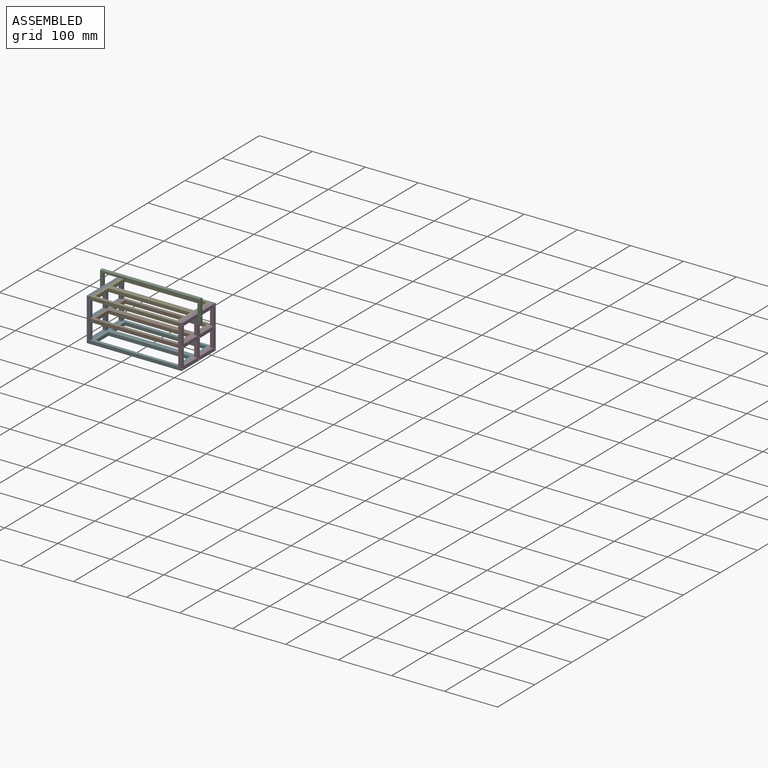
[diagram: assembled view]
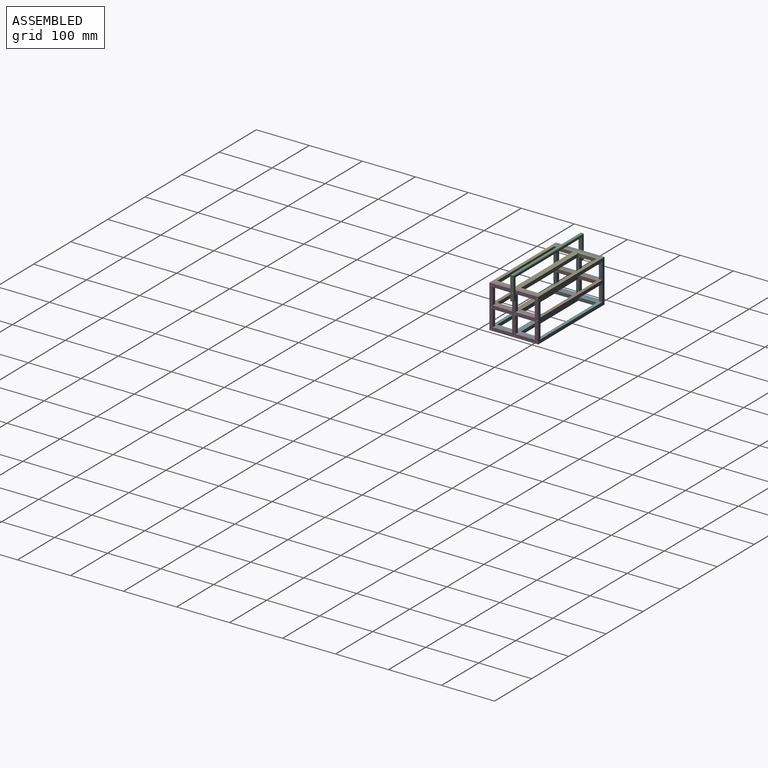
[diagram: assembled view, second angle]
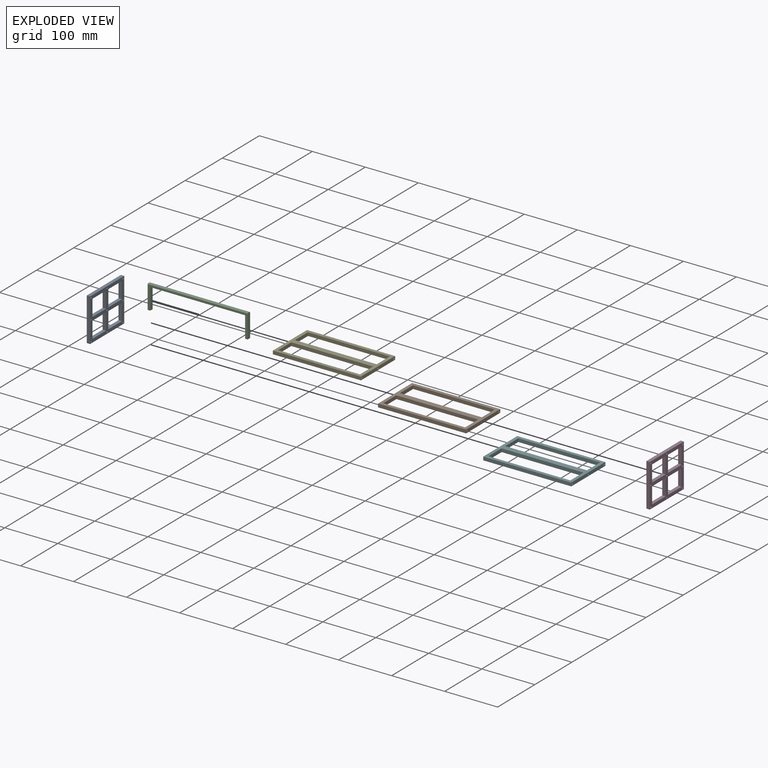
[diagram: exploded view]
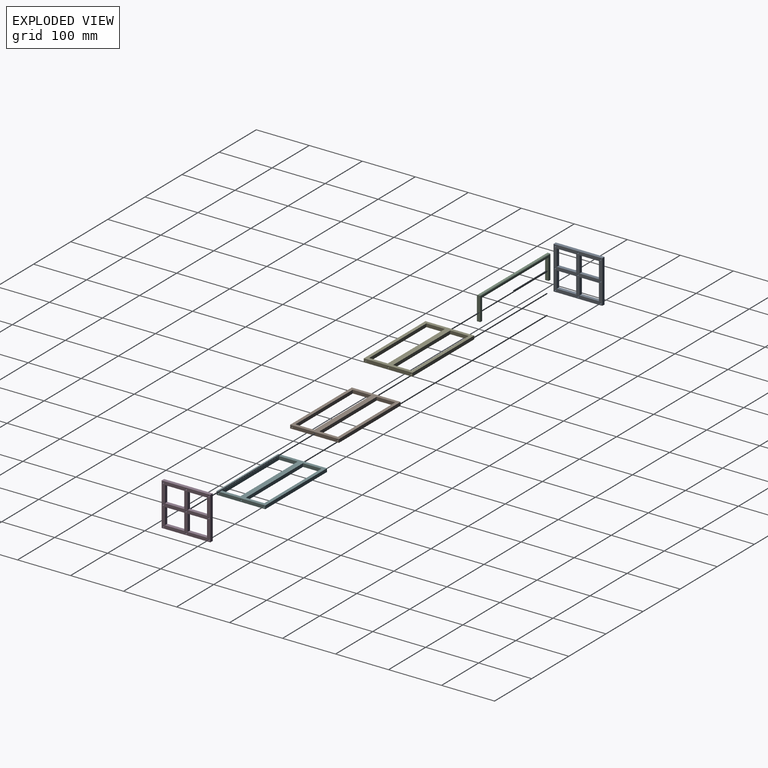
[diagram: exploded view, second angle]
ASSEMBLY  parts=6 mates=5
PART A: 31 faces, bbox 92x81.1x6.4 mm
  f0: plane 92x81.05mm, normal (0,0,1), area 2870.1mm2, adj f2,f3,f4,f5,f6,f7,f8,f9
  f1: plane 92x81.05mm, normal (0,0,-1), area 2870.1mm2, adj f2,f3,f4,f5,f6,f7,f8,f9
  f2: plane 81.05x6.35mm, normal (1,0,0), area 514.7mm2, adj f0,f1,f3,f5
  f3: plane 92x6.35mm, normal (0,1,0), area 584.2mm2, adj f0,f1,f2,f4
  f4: plane 81.05x6.35mm, normal (-1,0,0), area 514.7mm2, adj f0,f1,f3,f5
  f5: plane 92x6.35mm, normal (0,-1,0), area 584.2mm2, adj f0,f1,f2,f4
  f6: plane 36.48x6.35mm, normal (0,-1,0), area 231.6mm2, adj f0,f1,f7,f9
  f7: plane 31x6.35mm, normal (-1,0,0), area 196.8mm2, adj f0,f1,f6,f8
  f8: plane 36.48x6.35mm, normal (0,1,0), area 231.6mm2, adj f0,f1,f7,f9
  f9: plane 31x6.35mm, normal (1,0,0), area 196.8mm2, adj f0,f1,f6,f8
  f10: plane 36.48x6.35mm, normal (0,1,0), area 231.6mm2, adj f0,f1,f11,f13
  f11: plane 31x6.35mm, normal (1,0,0), area 196.8mm2, adj f0,f1,f10,f12
  f12: plane 36.48x6.35mm, normal (0,-1,0), area 231.6mm2, adj f0,f1,f11,f13
  f13: plane 31x6.35mm, normal (-1,0,0), area 196.8mm2, adj f0,f1,f10,f12
  f14: plane 36.48x6.35mm, normal (0,1,0), area 231.6mm2, adj f0,f1,f15,f17
  f15: plane 31x6.35mm, normal (1,0,0), area 196.8mm2, adj f0,f1,f14,f16
  f16: plane 36.48x6.35mm, normal (0,-1,0), area 231.6mm2, adj f0,f1,f15,f17
  f17: plane 31x6.35mm, normal (-1,0,0), area 196.8mm2, adj f0,f1,f14,f16
  f18: plane 31x6.35mm, normal (-1,0,0), area 196.8mm2, adj f0,f1,f19,f21
  f19: plane 36.48x6.35mm, normal (0,1,0), area 231.6mm2, adj f0,f1,f18,f20
  f20: plane 31x6.35mm, normal (1,0,0), area 196.8mm2, adj f0,f1,f19,f21
  f21: plane 36.48x6.35mm, normal (0,-1,0), area 231.6mm2, adj f0,f1,f18,f20
  f22: cylinder r=1.5mm len=6.35mm, axis (0,0,1), area 59.8mm2, adj f0,f1
  f23: cylinder r=1.5mm len=6.35mm, axis (0,0,1), area 59.8mm2, adj f0,f1
  f24: cylinder r=1.5mm len=6.35mm, axis (0,0,1), area 59.8mm2, adj f0,f1
  f25: cylinder r=1.5mm len=6.35mm, axis (0,0,1), area 59.8mm2, adj f0,f1
  f26: cylinder r=1.5mm len=6.35mm, axis (0,0,1), area 59.8mm2, adj f0,f1
  f27: cylinder r=1.5mm len=6.35mm, axis (0,0,1), area 59.8mm2, adj f0,f1
  f28: cylinder r=1.5mm len=6.35mm, axis (0,0,1), area 59.8mm2, adj f0,f1
  f29: cylinder r=1.5mm len=6.35mm, axis (0,0,1), area 59.8mm2, adj f0,f1
  f30: cylinder r=1.5mm len=6.35mm, axis (0,0,1), area 59.8mm2, adj f0,f1
PART B: 26 faces, bbox 166.2x92x6.4 mm
  f0: plane 154.2x6.35mm, normal (0,-1,0), area 979.2mm2, adj f1,f11,f12,f13
  f1: plane 35x6.35mm, normal (-1,0,0), area 222.2mm2, adj f0,f2,f12,f13
  f2: plane 154.2x6.35mm, normal (0,1,0), area 979.2mm2, adj f1,f11,f12,f13
  f3: plane 35x6.35mm, normal (-1,0,0), area 222.2mm2, adj f4,f9,f12,f13
  f4: plane 154.2x6.35mm, normal (0,1,0), area 979.2mm2, adj f3,f5,f12,f13
  f5: plane 35x6.35mm, normal (1,0,0), area 222.2mm2, adj f4,f9,f12,f13
  f6: plane 92x6.35mm, normal (1,0,0), area 563mm2, adj f7,f10,f12,f13,f20,f22,f24
  f7: plane 166.2x6.35mm, normal (0,1,0), area 1055.4mm2, adj f6,f8,f12,f13
  f8: plane 92x6.35mm, normal (-1,0,0), area 563mm2, adj f7,f10,f12,f13,f14,f16,f18
  f9: plane 154.2x6.35mm, normal (0,-1,0), area 979.2mm2, adj f3,f5,f12,f13
  f10: plane 166.2x6.35mm, normal (0,-1,0), area 1055.4mm2, adj f6,f8,f12,f13
  f11: plane 35x6.35mm, normal (1,0,0), area 222.2mm2, adj f0,f2,f12,f13
  f12: plane 166.2x92mm, normal (0,0,1), area 4496.4mm2, adj f0,f1,f2,f3,f4,f5,f6,f7
  f13: plane 166.2x92mm, normal (0,0,-1), area 4496.4mm2, adj f0,f1,f2,f3,f4,f5,f6,f7
  f14: cylinder r=1.5mm len=10mm, axis (-1,0,0), area 94.2mm2, adj f8,f15
  f15: cone r=0mm half-angle=59deg, axis (-1,0,0), area 8.2mm2, adj f14
  f16: cylinder r=1.5mm len=10mm, axis (-1,0,0), area 94.2mm2, adj f8,f17
  f17: cone r=0mm half-angle=59deg, axis (-1,0,0), area 8.2mm2, adj f16
  f18: cylinder r=1.5mm len=10mm, axis (-1,0,0), area 94.2mm2, adj f8,f19
  f19: cone r=0mm half-angle=59deg, axis (-1,0,0), area 8.2mm2, adj f18
  f20: cylinder r=1.5mm len=10mm, axis (1,0,0), area 94.2mm2, adj f6,f21
  f21: cone r=0mm half-angle=59deg, axis (1,0,0), area 8.2mm2, adj f20
  f22: cylinder r=1.5mm len=10mm, axis (1,0,0), area 94.2mm2, adj f6,f23
  f23: cone r=0mm half-angle=59deg, axis (1,0,0), area 8.2mm2, adj f22
  f24: cylinder r=1.5mm len=10mm, axis (1,0,0), area 94.2mm2, adj f6,f25
  f25: cone r=0mm half-angle=59deg, axis (1,0,0), area 8.2mm2, adj f24
PART C: 14 faces, bbox 188.9x45x6.4 mm
  f0: plane 40x6.35mm, normal (-1,0,0), area 246.9mm2, adj f1,f7,f8,f9,f11
  f1: plane 6.35x5mm, normal (0,-1,0), area 31.8mm2, adj f0,f2,f8,f9
  f2: plane 45x6.35mm, normal (1,0,0), area 277.7mm2, adj f1,f3,f8,f9,f11,f12,f13
  f3: plane 188.9x4.35mm, normal (0,1,0), area 821.7mm2, adj f2,f4,f12,f13
  f4: plane 45x6.35mm, normal (-1,0,0), area 277.7mm2, adj f3,f5,f8,f9,f10,f12,f13
  f5: plane 6.35x5mm, normal (0,-1,0), area 31.8mm2, adj f4,f6,f8,f9
  f6: plane 40x6.35mm, normal (1,0,0), area 246.9mm2, adj f5,f7,f8,f9,f10
  f7: plane 178.9x6.35mm, normal (0,-1,0), area 1136mm2, adj f0,f6,f8,f9
  f8: plane 188.9x44mm, normal (0,0,-1), area 1155.6mm2, adj f0,f1,f2,f4,f5,f6,f7,f13
  f9: plane 188.9x44mm, normal (0,0,1), area 1155.6mm2, adj f0,f1,f2,f4,f5,f6,f7,f12
  f10: cylinder r=1.5mm len=5mm, axis (-1,0,0), area 47.1mm2, adj f4,f6
  f11: cylinder r=1.5mm len=5mm, axis (-1,0,0), area 47.1mm2, adj f0,f2
  f12: plane 188.9x1mm, normal (0,0.71,0.71), area 267.1mm2, adj f2,f3,f4,f9
  f13: plane 188.9x1mm, normal (0,0.71,-0.71), area 267.1mm2, adj f2,f3,f4,f8
PART D: same geometry as A
PART E: same geometry as B
PART F: same geometry as B
PLACE A rot(axis=(-0.58,0.58,-0.58),120deg) t=(-179.24,-134.18,-5.76)mm
PLACE B t=(-89.79,-134.18,-8.94)mm
PLACE C rot(axis=(1,0,0),90deg) t=(-89.79,-134.18,39.09)mm
PLACE D rot(axis=(0.58,0.58,0.58),120deg) t=(-6.69,-134.18,-5.76)mm
PLACE E t=(-89.79,-134.18,28.41)mm
PLACE F t=(-89.79,-134.18,-46.29)mm
MATE planar F.f18 <-> A.f24  axis (-1,0,0) through (-172.89,-177,-43.11)mm
MATE planar D.f22 <-> E.f18  axis (-1,0,0) through (-6.69,-177,31.59)mm
MATE planar B.f18 <-> A.f27  axis (-1,0,0) through (-172.89,-177,-5.76)mm
MATE planar C.f10 <-> D.f23  axis (-1,0,0) through (-0.34,-134.18,31.59)mm
MATE planar E.f18 <-> A.f30  axis (-1,0,0) through (-172.89,-177,31.59)mm
